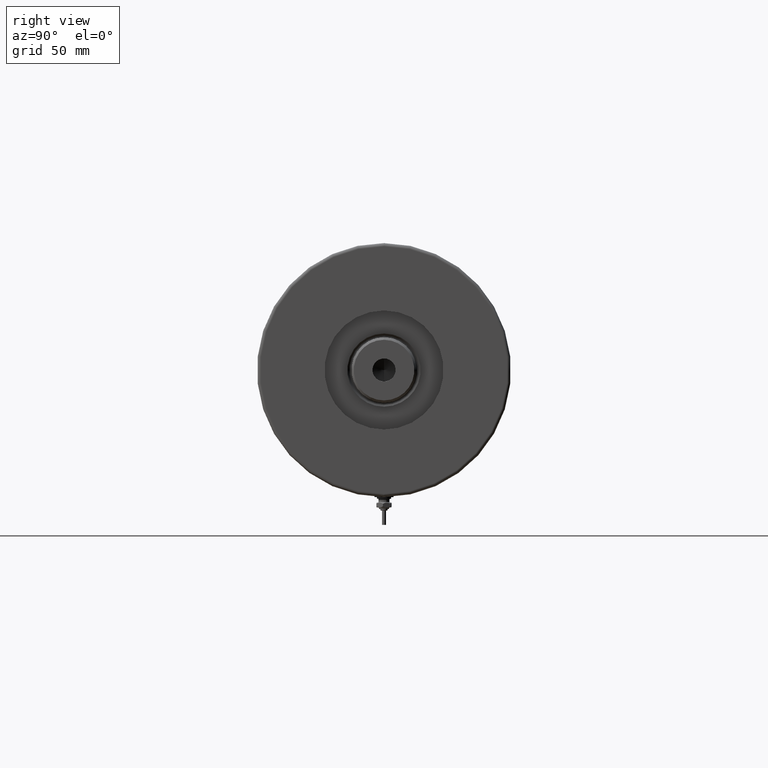
[diagram: clean part render]
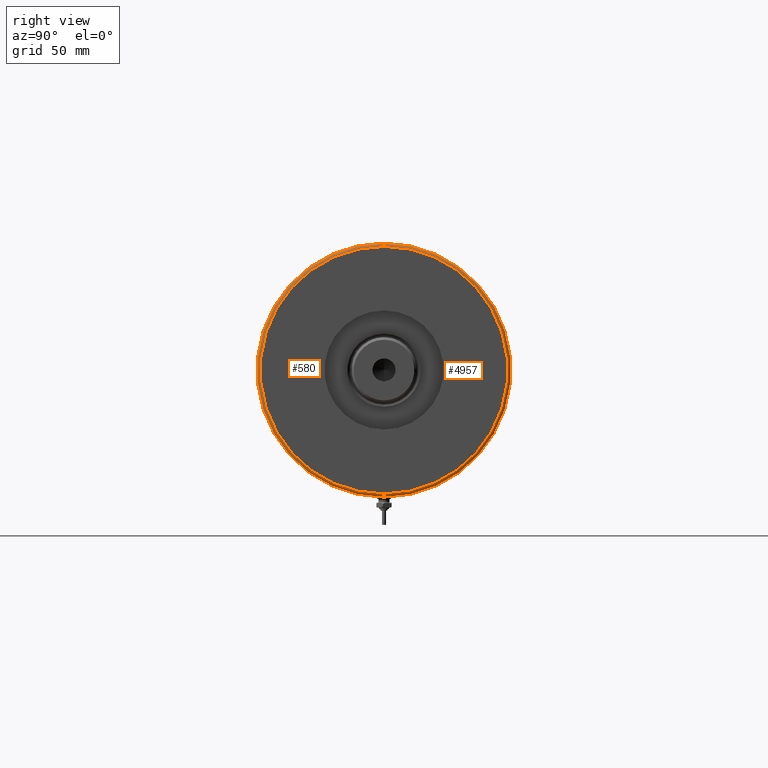
[diagram: same view with one multi-face feature highlighted, each face labeled with its STEP entity id]
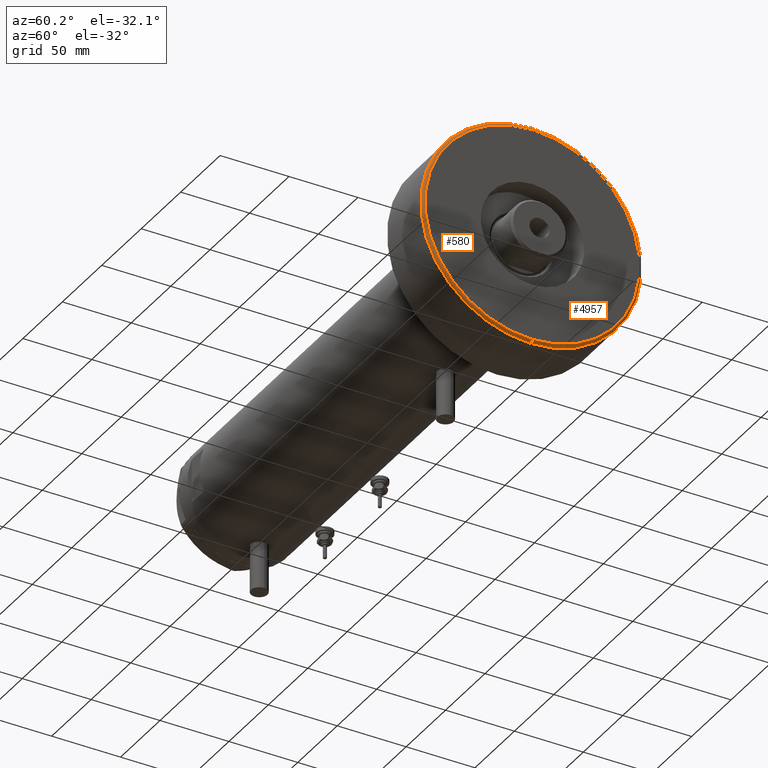
[diagram: same view with one multi-face feature highlighted, each face labeled with its STEP entity id]
A machine part, right view. The highlighted faces form ONE feature: a constant-radius fillet chain: 2 tangent blend faces with common blend radius 2 mm. The faces share edges in the B-rep.
A second angle (auxiliary view) of the same feature is appended — it is thin or edge-on in the first view.
Their STEP definitions:
[1] entity #580 (Torus):
#54 = DIRECTION ( 'NONE',  ( 1.000000000000000000, 0.000000000000000000, 0.000000000000000000 ) ) ;
#309 = EDGE_CURVE ( 'NONE', #6070, #2881, #1950, .T. ) ;
#336 = CARTESIAN_POINT ( 'NONE',  ( 80.00000000000000000, 9.797174393178826052E-15, 44.00000000000000000 ) ) ;
#580 = ADVANCED_FACE ( 'NONE', ( #5679 ), #3583, .T. ) ;
#622 = EDGE_CURVE ( 'NONE', #6070, #6287, #1303, .T. ) ;
#683 = DIRECTION ( 'NONE',  ( 0.000000000000000000, 0.000000000000000000, 1.000000000000000000 ) ) ;
#875 = ORIENTED_EDGE ( 'NONE', *, *, #309, .F. ) ;
#1162 = DIRECTION ( 'NONE',  ( 0.000000000000000000, -1.000000000000000000, 0.000000000000000000 ) ) ;
#1303 = CIRCLE ( 'NONE', #4504, 2.000000000000001776 ) ;
#1315 = AXIS2_PLACEMENT_3D ( 'NONE', #5699, #4714, #3669 ) ;
#1371 = EDGE_CURVE ( 'NONE', #2881, #3627, #2254, .T. ) ;
#1745 = EDGE_CURVE ( 'NONE', #3627, #6287, #1964, .T. ) ;
#1910 = DIRECTION ( 'NONE',  ( 1.000000000000000000, 0.000000000000000000, 0.000000000000000000 ) ) ;
#1950 = CIRCLE ( 'NONE', #3282, 80.00000000000000000 ) ;
#1964 = CIRCLE ( 'NONE', #5550, 78.00000000000000000 ) ;
#2167 = CARTESIAN_POINT ( 'NONE',  ( 78.00000000000000000, 0.000000000000000000, 44.00000000000000000 ) ) ;
#2254 = CIRCLE ( 'NONE', #1315, 2.000000000000001776 ) ;
#2257 = ORIENTED_EDGE ( 'NONE', *, *, #622, .T. ) ;
#2369 = CARTESIAN_POINT ( 'NONE',  ( -80.00000000000000000, 0.000000000000000000, 44.00000000000000000 ) ) ;
#2507 = CARTESIAN_POINT ( 'NONE',  ( 0.000000000000000000, 0.000000000000000000, 46.00000000000000000 ) ) ;
#2881 = VERTEX_POINT ( 'NONE', #2369 ) ;
#3143 = DIRECTION ( 'NONE',  ( 0.000000000000000000, 0.000000000000000000, -1.000000000000000000 ) ) ;
#3282 = AXIS2_PLACEMENT_3D ( 'NONE', #3719, #5768, #1910 ) ;
#3583 = TOROIDAL_SURFACE ( 'NONE', #4189, 78.00000000000000000, 2.000000000000000000 ) ;
#3627 = VERTEX_POINT ( 'NONE', #5063 ) ;
#3669 = DIRECTION ( 'NONE',  ( -1.000000000000000000, 1.224646799147349509E-16, 0.000000000000000000 ) ) ;
#3719 = CARTESIAN_POINT ( 'NONE',  ( 0.000000000000000000, 0.000000000000000000, 44.00000000000000000 ) ) ;
#3950 = ORIENTED_EDGE ( 'NONE', *, *, #1745, .F. ) ;
#4189 = AXIS2_PLACEMENT_3D ( 'NONE', #5153, #683, #4671 ) ;
#4251 = ORIENTED_EDGE ( 'NONE', *, *, #1371, .F. ) ;
#4376 = EDGE_LOOP ( 'NONE', ( #4251, #875, #2257, #3950 ) ) ;
#4381 = CARTESIAN_POINT ( 'NONE',  ( 78.00000000000000000, 0.000000000000000000, 46.00000000000000000 ) ) ;
#4462 = DIRECTION ( 'NONE',  ( 0.000000000000000000, 0.000000000000000000, 1.000000000000000000 ) ) ;
#4504 = AXIS2_PLACEMENT_3D ( 'NONE', #2167, #1162, #3143 ) ;
#4671 = DIRECTION ( 'NONE',  ( 1.000000000000000000, 0.000000000000000000, 0.000000000000000000 ) ) ;
#4714 = DIRECTION ( 'NONE',  ( 1.224646799147353207E-16, 1.000000000000000000, -0.000000000000000000 ) ) ;
#5063 = CARTESIAN_POINT ( 'NONE',  ( -78.00000000000000000, 9.674709713264090904E-15, 46.00000000000000000 ) ) ;
#5153 = CARTESIAN_POINT ( 'NONE',  ( 0.000000000000000000, 0.000000000000000000, 44.00000000000000000 ) ) ;
#5550 = AXIS2_PLACEMENT_3D ( 'NONE', #2507, #4462, #54 ) ;
#5679 = FACE_OUTER_BOUND ( 'NONE', #4376, .T. ) ;
#5699 = CARTESIAN_POINT ( 'NONE',  ( -78.00000000000000000, 9.552245033349355756E-15, 44.00000000000000000 ) ) ;
#5768 = DIRECTION ( 'NONE',  ( -0.000000000000000000, -0.000000000000000000, -1.000000000000000000 ) ) ;
#6070 = VERTEX_POINT ( 'NONE', #336 ) ;
#6287 = VERTEX_POINT ( 'NONE', #4381 ) ;
[2] entity #4957 (Torus):
#57 = DIRECTION ( 'NONE',  ( 1.000000000000000000, 0.000000000000000000, 0.000000000000000000 ) ) ;
#202 = DIRECTION ( 'NONE',  ( -0.000000000000000000, -0.000000000000000000, -1.000000000000000000 ) ) ;
#336 = CARTESIAN_POINT ( 'NONE',  ( 80.00000000000000000, 9.797174393178826052E-15, 44.00000000000000000 ) ) ;
#560 = DIRECTION ( 'NONE',  ( 1.000000000000000000, 0.000000000000000000, 0.000000000000000000 ) ) ;
#622 = EDGE_CURVE ( 'NONE', #6070, #6287, #1303, .T. ) ;
#955 = CIRCLE ( 'NONE', #4551, 80.00000000000000000 ) ;
#1162 = DIRECTION ( 'NONE',  ( 0.000000000000000000, -1.000000000000000000, 0.000000000000000000 ) ) ;
#1282 = ORIENTED_EDGE ( 'NONE', *, *, #1371, .T. ) ;
#1303 = CIRCLE ( 'NONE', #4504, 2.000000000000001776 ) ;
#1315 = AXIS2_PLACEMENT_3D ( 'NONE', #5699, #4714, #3669 ) ;
#1371 = EDGE_CURVE ( 'NONE', #2881, #3627, #2254, .T. ) ;
#2032 = DIRECTION ( 'NONE',  ( 0.000000000000000000, 0.000000000000000000, 1.000000000000000000 ) ) ;
#2167 = CARTESIAN_POINT ( 'NONE',  ( 78.00000000000000000, 0.000000000000000000, 44.00000000000000000 ) ) ;
#2203 = CARTESIAN_POINT ( 'NONE',  ( 0.000000000000000000, 0.000000000000000000, 44.00000000000000000 ) ) ;
#2254 = CIRCLE ( 'NONE', #1315, 2.000000000000001776 ) ;
#2369 = CARTESIAN_POINT ( 'NONE',  ( -80.00000000000000000, 0.000000000000000000, 44.00000000000000000 ) ) ;
#2451 = CARTESIAN_POINT ( 'NONE',  ( 0.000000000000000000, 0.000000000000000000, 46.00000000000000000 ) ) ;
#2690 = AXIS2_PLACEMENT_3D ( 'NONE', #3478, #2032, #5988 ) ;
#2881 = VERTEX_POINT ( 'NONE', #2369 ) ;
#2956 = FACE_OUTER_BOUND ( 'NONE', #3472, .T. ) ;
#3143 = DIRECTION ( 'NONE',  ( 0.000000000000000000, 0.000000000000000000, -1.000000000000000000 ) ) ;
#3325 = TOROIDAL_SURFACE ( 'NONE', #2690, 78.00000000000000000, 2.000000000000000000 ) ;
#3472 = EDGE_LOOP ( 'NONE', ( #4728, #1282, #4307, #5176 ) ) ;
#3478 = CARTESIAN_POINT ( 'NONE',  ( 0.000000000000000000, 0.000000000000000000, 44.00000000000000000 ) ) ;
#3627 = VERTEX_POINT ( 'NONE', #5063 ) ;
#3669 = DIRECTION ( 'NONE',  ( -1.000000000000000000, 1.224646799147349509E-16, 0.000000000000000000 ) ) ;
#4245 = CIRCLE ( 'NONE', #5485, 78.00000000000000000 ) ;
#4307 = ORIENTED_EDGE ( 'NONE', *, *, #5381, .F. ) ;
#4381 = CARTESIAN_POINT ( 'NONE',  ( 78.00000000000000000, 0.000000000000000000, 46.00000000000000000 ) ) ;
#4504 = AXIS2_PLACEMENT_3D ( 'NONE', #2167, #1162, #3143 ) ;
#4551 = AXIS2_PLACEMENT_3D ( 'NONE', #2203, #202, #57 ) ;
#4714 = DIRECTION ( 'NONE',  ( 1.224646799147353207E-16, 1.000000000000000000, -0.000000000000000000 ) ) ;
#4728 = ORIENTED_EDGE ( 'NONE', *, *, #4946, .F. ) ;
#4946 = EDGE_CURVE ( 'NONE', #2881, #6070, #955, .T. ) ;
#4957 = ADVANCED_FACE ( 'NONE', ( #2956 ), #3325, .T. ) ;
#5063 = CARTESIAN_POINT ( 'NONE',  ( -78.00000000000000000, 9.674709713264090904E-15, 46.00000000000000000 ) ) ;
#5176 = ORIENTED_EDGE ( 'NONE', *, *, #622, .F. ) ;
#5381 = EDGE_CURVE ( 'NONE', #6287, #3627, #4245, .T. ) ;
#5485 = AXIS2_PLACEMENT_3D ( 'NONE', #2451, #5916, #560 ) ;
#5699 = CARTESIAN_POINT ( 'NONE',  ( -78.00000000000000000, 9.552245033349355756E-15, 44.00000000000000000 ) ) ;
#5916 = DIRECTION ( 'NONE',  ( 0.000000000000000000, 0.000000000000000000, 1.000000000000000000 ) ) ;
#5988 = DIRECTION ( 'NONE',  ( 1.000000000000000000, 0.000000000000000000, 0.000000000000000000 ) ) ;
#6070 = VERTEX_POINT ( 'NONE', #336 ) ;
#6287 = VERTEX_POINT ( 'NONE', #4381 ) ;